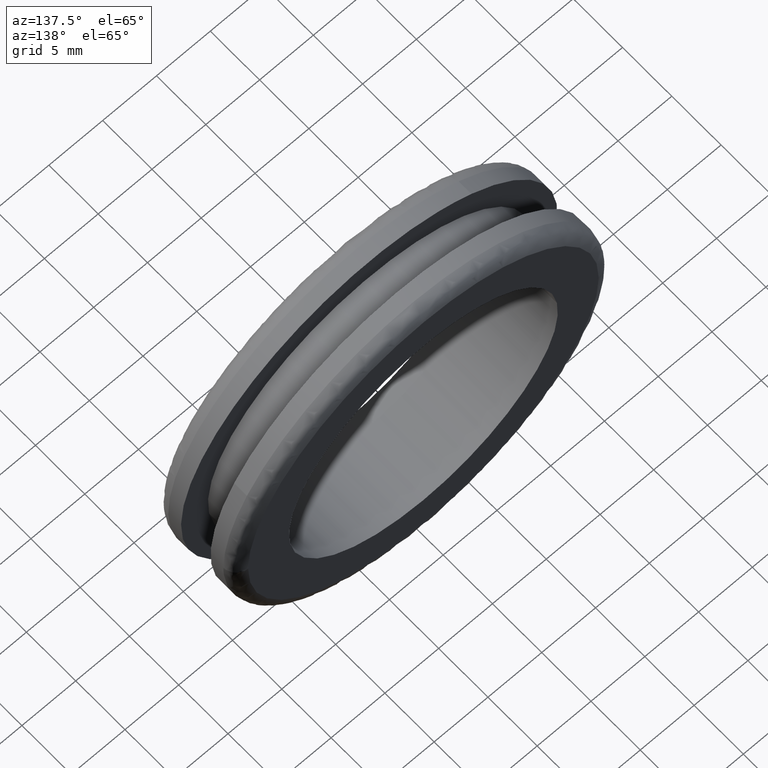
[diagram: clean part render]
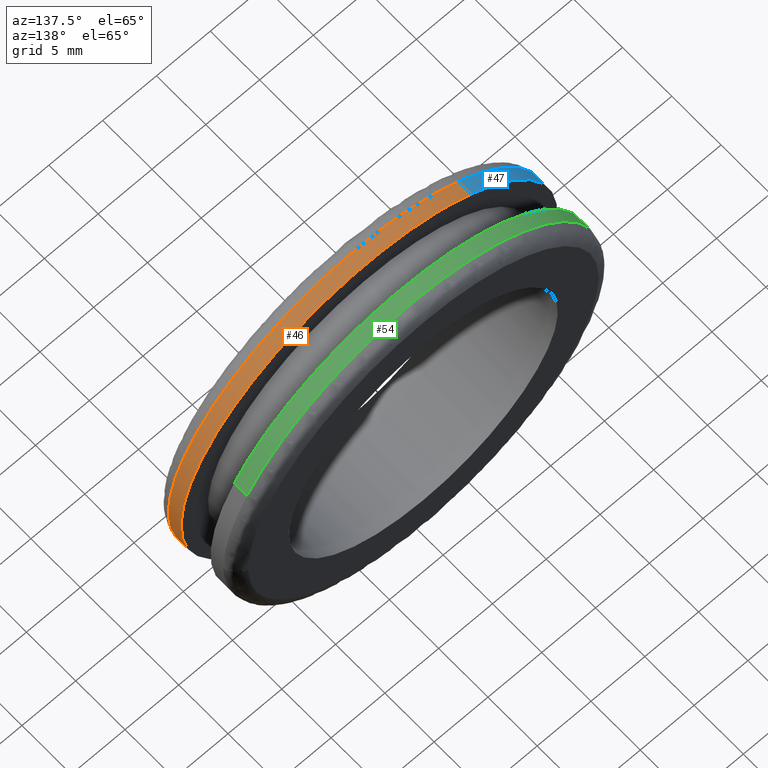
[diagram: same view with three faces highlighted in distinct colors, each labeled with its STEP entity id]
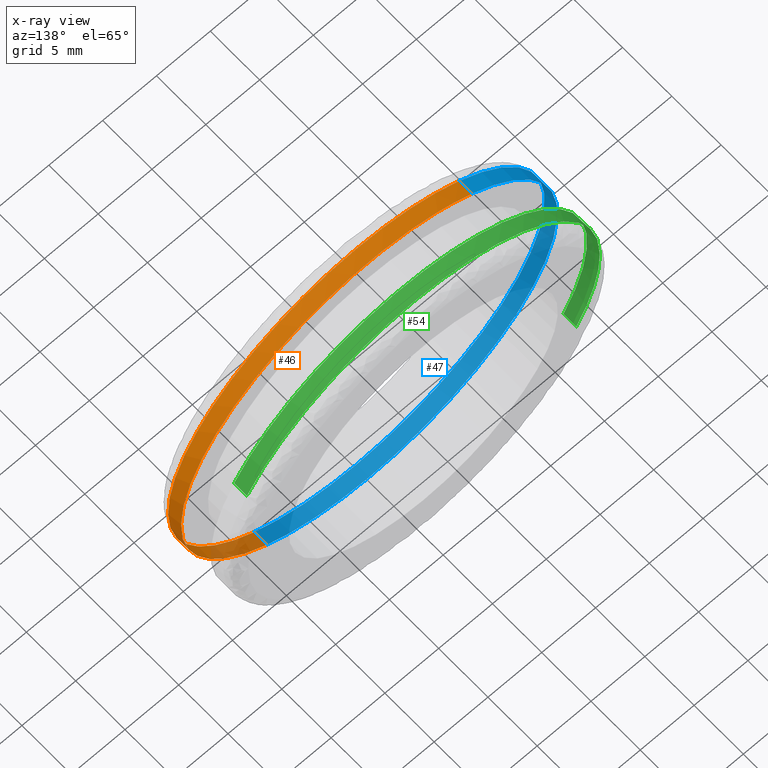
[diagram: x-ray of the same camera — body ghosted, the three highlighted faces saturated]
A machine part, auxiliary view with three faces highlighted in distinct colors.
The next image is the same camera in x-ray (body ghosted, the three faces saturated) — at least one of them is partly hidden behind the body in this view.
Their STEP definitions:

[orange] entity #46 — the highlighted cylindrical surface (partial cylindrical patch) has radius 17.5 mm, axis along (-0, 1, -0).
#46=ADVANCED_FACE('',(#121),#120,.T.);
#120=CYLINDRICAL_SURFACE('',#257,1.75000000000E+001);
#121=FACE_OUTER_BOUND('',#258,.T.);
#254=CARTESIAN_POINT('',(-2.60738374030E-015,2.53250000000E+000,1.50569380069E-015));
#255=DIRECTION('',(-5.66604407316E-016,1.00000000000E+000,-3.96339964228E-016));
#256=DIRECTION('',(-5.42728861529E-001,2.53765262771E-017,8.39907960948E-001));
#257=AXIS2_PLACEMENT_3D('',#254,#255,#256);
#258=EDGE_LOOP('',(#421,#422,#423,#424,#425,#426));
#421=ORIENTED_EDGE('',*,*,#487,.T.);
#422=ORIENTED_EDGE('',*,*,#511,.F.);
#423=ORIENTED_EDGE('',*,*,#512,.F.);
#424=ORIENTED_EDGE('',*,*,#513,.F.);
#425=ORIENTED_EDGE('',*,*,#514,.F.);
#426=ORIENTED_EDGE('',*,*,#515,.T.);
#487=EDGE_CURVE('',#543,#535,#544,.T.);
#511=EDGE_CURVE('',#708,#535,#709,.T.);
#512=EDGE_CURVE('',#715,#708,#716,.T.);
#513=EDGE_CURVE('',#722,#715,#723,.T.);
#514=EDGE_CURVE('',#729,#722,#730,.T.);
#515=EDGE_CURVE('',#729,#543,#736,.T.);
#535=VERTEX_POINT('',#866);
#543=VERTEX_POINT('',#872);
#544=(BOUNDED_CURVE() B_SPLINE_CURVE(2,(#873,#874,#875,#876,#877),.UNSPECIFIED.,.F.,.F.) B_SPLINE_CURVE_WITH_KNOTS((3,2,3),(0.00000000000E+000,5.00000000000E-001,1.00000000000E+000),.UNSPECIFIED.) CURVE() GEOMETRIC_REPRESENTATION_ITEM() RATIONAL_B_SPLINE_CURVE((1.00000000000E+000,7.07160008278E-001,1.00000000000E+000,7.07160008278E-001,1.00000000000E+000)) REPRESENTATION_ITEM('') );
#708=VERTEX_POINT('',#985);
#709=(BOUNDED_CURVE() B_SPLINE_CURVE(1,(#986,#987),.UNSPECIFIED.,.F.,.F.) B_SPLINE_CURVE_WITH_KNOTS((2,2),(8.33333532020E-002,9.16666656883E-001),.UNSPECIFIED.) CURVE() GEOMETRIC_REPRESENTATION_ITEM() RATIONAL_B_SPLINE_CURVE((1.00000000000E+000,1.00000000000E+000)) REPRESENTATION_ITEM('') );
#715=VERTEX_POINT('',#988);
#716=CIRCLE('',#992,1.75000000000E+001);
#722=VERTEX_POINT('',#993);
#723=CIRCLE('',#997,1.75000000000E+001);
#729=VERTEX_POINT('',#998);
#730=CIRCLE('',#1002,1.75000000000E+001);
#736=(BOUNDED_CURVE() B_SPLINE_CURVE(1,(#1003,#1004),.UNSPECIFIED.,.F.,.F.) B_SPLINE_CURVE_WITH_KNOTS((2,2),(8.33333333476E-002,9.16666666667E-001),.UNSPECIFIED.) CURVE() GEOMETRIC_REPRESENTATION_ITEM() RATIONAL_B_SPLINE_CURVE((7.50000000000E-001,7.50000000000E-001)) REPRESENTATION_ITEM('') );
#866=CARTESIAN_POINT('',(-9.49775507428E+000,2.50000000000E+000,1.46983893182E+001));
#872=CARTESIAN_POINT('',(9.49775507676E+000,2.50000000000E+000,-1.46983893166E+001));
#873=CARTESIAN_POINT('',(9.49775507676E+000,2.50000000000E+000,-1.46983893166E+001));
#874=CARTESIAN_POINT('',(2.41954969414E+001,2.50000000000E+000,-5.19477881519E+000));
#875=CARTESIAN_POINT('',(1.46969592207E+001,2.50000000000E+000,9.49996787701E+000));
#876=CARTESIAN_POINT('',(5.19842150009E+000,2.50000000000E+000,2.41947145692E+001));
#877=CARTESIAN_POINT('',(-9.49775507428E+000,2.50000000000E+000,1.46983893182E+001));
#985=CARTESIAN_POINT('',(-9.49775507687E+000,1.19999999999E+000,1.46983893165E+001));
#986=CARTESIAN_POINT('',(-9.49775507676E+000,1.20000003095E+000,1.46983893166E+001));
#987=CARTESIAN_POINT('',(-9.49775507676E+000,2.49999998474E+000,1.46983893166E+001));
#988=CARTESIAN_POINT('',(0.00000000000E+000,1.20000000000E+000,1.75000000000E+001));
#989=CARTESIAN_POINT('',(3.12994075102E-012,1.19999999995E+000,-3.35731442647E-012));
#990=DIRECTION('',(-4.48597845338E-018,-1.00000000000E+000,2.85324779676E-012));
#991=DIRECTION('',(1.78853757201E-013,-2.85324779676E-012,-1.00000000000E+000));
#992=AXIS2_PLACEMENT_3D('',#989,#990,#991);
#993=CARTESIAN_POINT('',(1.74986182736E+001,1.19999999995E+000,-2.19905697968E-001));
#994=CARTESIAN_POINT('',(1.77635683940E-015,1.19999999992E+000,-3.55271367880E-015));
#995=DIRECTION('',(7.14515478784E-012,-1.00000000000E+000,4.23763596986E-010));
#996=DIRECTION('',(-9.99921044204E-001,-1.81956037539E-012,1.25660398839E-002));
#997=AXIS2_PLACEMENT_3D('',#994,#995,#996);
#998=CARTESIAN_POINT('',(9.49807078876E+000,1.19999999999E+000,-1.46981853061E+001));
#999=CARTESIAN_POINT('',(-1.23332455360E-011,1.19999999995E+000,7.92077514689E-012));
#1000=DIRECTION('',(2.04828194437E-014,-1.00000000000E+000,-2.69712309461E-012));
#1001=DIRECTION('',(-5.42728706712E-001,-2.27645204274E-012,8.39908060987E-001));
#1002=AXIS2_PLACEMENT_3D('',#999,#1000,#1001);
#1003=CARTESIAN_POINT('',(9.49775507676E+000,1.19999999998E+000,-1.46983893166E+001));
#1004=CARTESIAN_POINT('',(9.49775507676E+000,2.50000000000E+000,-1.46983893166E+001));

[blue] entity #47 — the highlighted cylindrical surface (partial cylindrical patch) has radius 17.5 mm, axis along (-0, 1, -0).
#47=ADVANCED_FACE('',(#131),#130,.T.);
#130=CYLINDRICAL_SURFACE('',#262,1.75000000000E+001);
#131=FACE_OUTER_BOUND('',#263,.T.);
#259=CARTESIAN_POINT('',(-2.60738374030E-015,2.53250000000E+000,1.50569380069E-015));
#260=DIRECTION('',(-5.66604407316E-016,1.00000000000E+000,-3.96339964228E-016));
#261=DIRECTION('',(-5.42728861529E-001,2.53765262771E-017,8.39907960948E-001));
#262=AXIS2_PLACEMENT_3D('',#259,#260,#261);
#263=EDGE_LOOP('',(#427,#428,#429,#430,#431,#432,#433,#434));
#427=ORIENTED_EDGE('',*,*,#516,.F.);
#428=ORIENTED_EDGE('',*,*,#517,.F.);
#429=ORIENTED_EDGE('',*,*,#518,.F.);
#430=ORIENTED_EDGE('',*,*,#519,.F.);
#431=ORIENTED_EDGE('',*,*,#511,.T.);
#432=ORIENTED_EDGE('',*,*,#486,.T.);
#433=ORIENTED_EDGE('',*,*,#488,.T.);
#434=ORIENTED_EDGE('',*,*,#515,.F.);
#486=EDGE_CURVE('',#535,#536,#537,.T.);
#488=EDGE_CURVE('',#536,#543,#550,.T.);
#511=EDGE_CURVE('',#708,#535,#709,.T.);
#515=EDGE_CURVE('',#729,#543,#736,.T.);
#516=EDGE_CURVE('',#742,#729,#743,.T.);
#517=EDGE_CURVE('',#749,#742,#750,.T.);
#518=EDGE_CURVE('',#756,#749,#757,.T.);
#519=EDGE_CURVE('',#708,#756,#763,.T.);
#535=VERTEX_POINT('',#866);
#536=VERTEX_POINT('',#867);
#537=CIRCLE('',#871,1.75000000000E+001);
#543=VERTEX_POINT('',#872);
#550=(BOUNDED_CURVE() B_SPLINE_CURVE(2,(#878,#879,#880),.UNSPECIFIED.,.F.,.F.) B_SPLINE_CURVE_WITH_KNOTS((3,3),(0.00000000000E+000,9.99467849730E-001),.UNSPECIFIED.) CURVE() GEOMETRIC_REPRESENTATION_ITEM() RATIONAL_B_SPLINE_CURVE((1.00000000000E+000,9.59099708657E-001,1.00000000000E+000)) REPRESENTATION_ITEM('') );
#708=VERTEX_POINT('',#985);
#709=(BOUNDED_CURVE() B_SPLINE_CURVE(1,(#986,#987),.UNSPECIFIED.,.F.,.F.) B_SPLINE_CURVE_WITH_KNOTS((2,2),(8.33333532020E-002,9.16666656883E-001),.UNSPECIFIED.) CURVE() GEOMETRIC_REPRESENTATION_ITEM() RATIONAL_B_SPLINE_CURVE((1.00000000000E+000,1.00000000000E+000)) REPRESENTATION_ITEM('') );
#729=VERTEX_POINT('',#998);
#736=(BOUNDED_CURVE() B_SPLINE_CURVE(1,(#1003,#1004),.UNSPECIFIED.,.F.,.F.) B_SPLINE_CURVE_WITH_KNOTS((2,2),(8.33333333476E-002,9.16666666667E-001),.UNSPECIFIED.) CURVE() GEOMETRIC_REPRESENTATION_ITEM() RATIONAL_B_SPLINE_CURVE((7.50000000000E-001,7.50000000000E-001)) REPRESENTATION_ITEM('') );
#742=VERTEX_POINT('',#1005);
#743=CIRCLE('',#1009,1.75000000000E+001);
#749=VERTEX_POINT('',#1010);
#750=CIRCLE('',#1014,1.75000000000E+001);
#756=VERTEX_POINT('',#1015);
#757=CIRCLE('',#1019,1.75000000000E+001);
#763=CIRCLE('',#1023,1.75000000000E+001);
#866=CARTESIAN_POINT('',(-9.49775507428E+000,2.50000000000E+000,1.46983893182E+001));
#867=CARTESIAN_POINT('',(0.00000000000E+000,2.50000000000E+000,-1.75000000000E+001));
#868=CARTESIAN_POINT('',(1.54543045028E-013,2.50000000000E+000,2.08499884025E-013));
#869=DIRECTION('',(9.36100004287E-017,-1.00000000000E+000,9.07020236042E-017));
#870=DIRECTION('',(-9.32587340685E-015,-9.07020236042E-017,-1.00000000000E+000));
#871=AXIS2_PLACEMENT_3D('',#868,#869,#870);
#872=CARTESIAN_POINT('',(9.49775507676E+000,2.50000000000E+000,-1.46983893166E+001));
#878=CARTESIAN_POINT('',(-8.65973959207E-015,2.50000000000E+000,-1.75000000000E+001));
#879=CARTESIAN_POINT('',(5.16494570445E+000,2.50000000000E+000,-1.75000000000E+001));
#880=CARTESIAN_POINT('',(9.49775507676E+000,2.50000000000E+000,-1.46983893166E+001));
#985=CARTESIAN_POINT('',(-9.49775507687E+000,1.19999999999E+000,1.46983893165E+001));
#986=CARTESIAN_POINT('',(-9.49775507676E+000,1.20000003095E+000,1.46983893166E+001));
#987=CARTESIAN_POINT('',(-9.49775507676E+000,2.49999998474E+000,1.46983893166E+001));
#998=CARTESIAN_POINT('',(9.49807078876E+000,1.19999999999E+000,-1.46981853061E+001));
#1003=CARTESIAN_POINT('',(9.49775507676E+000,1.19999999998E+000,-1.46983893166E+001));
#1004=CARTESIAN_POINT('',(9.49775507676E+000,2.50000000000E+000,-1.46983893166E+001));
#1005=CARTESIAN_POINT('',(-3.02387297383E-004,1.20000000000E+000,-1.74999999974E+001));
#1006=CARTESIAN_POINT('',(-1.23332455360E-011,1.19999999995E+000,7.92077514689E-012));
#1007=DIRECTION('',(2.04828194437E-014,-1.00000000000E+000,-2.69712309461E-012));
#1008=DIRECTION('',(-5.42728706712E-001,-2.27645204274E-012,8.39908060987E-001));
#1009=AXIS2_PLACEMENT_3D('',#1006,#1007,#1008);
#1010=CARTESIAN_POINT('',(-1.35034316115E+001,1.20000000000E+000,-1.11313671538E+001));
#1011=CARTESIAN_POINT('',(-1.23332455360E-011,1.19999999995E+000,7.92077514689E-012));
#1012=DIRECTION('',(2.04828194437E-014,-1.00000000000E+000,-2.69712309461E-012));
#1013=DIRECTION('',(-5.42728706712E-001,-2.27645204274E-012,8.39908060987E-001));
#1014=AXIS2_PLACEMENT_3D('',#1011,#1012,#1013);
#1015=CARTESIAN_POINT('',(-1.74573992922E+001,1.19999999995E+000,1.22033190258E+000));
#1016=CARTESIAN_POINT('',(-6.71462885293E-013,1.19999999966E+000,-2.22044604925E-014));
#1017=DIRECTION('',(-2.20912437763E-011,-1.00000000000E+000,-7.46754353608E-011));
#1018=DIRECTION('',(9.97565673840E-001,-1.68301055632E-011,-6.97332515758E-002));
#1019=AXIS2_PLACEMENT_3D('',#1016,#1017,#1018);
#1020=CARTESIAN_POINT('',(3.12994075102E-012,1.19999999995E+000,-3.35731442647E-012));
#1021=DIRECTION('',(-4.48597845338E-018,-1.00000000000E+000,2.85324779676E-012));
#1022=DIRECTION('',(1.78853757201E-013,-2.85324779676E-012,-1.00000000000E+000));
#1023=AXIS2_PLACEMENT_3D('',#1020,#1021,#1022);

[green] entity #54 — the highlighted cylindrical surface (partial cylindrical patch) has radius 17.5 mm, axis along (-0, 1, 0).
#54=ADVANCED_FACE('',(#201),#200,.T.);
#200=CYLINDRICAL_SURFACE('',#381,1.75000000000E+001);
#201=FACE_OUTER_BOUND('',#382,.T.);
#378=CARTESIAN_POINT('',(-9.04307677237E-016,6.83250000002E+000,1.24636421575E-014));
#379=DIRECTION('',(-2.36185531121E-017,1.00000000000E+000,4.26768412981E-017));
#380=DIRECTION('',(-8.74946427443E-001,-3.08148791102E-033,-4.84219732254E-001));
#381=AXIS2_PLACEMENT_3D('',#378,#379,#380);
#382=EDGE_LOOP('',(#472,#473,#474,#475,#476,#477));
#472=ORIENTED_EDGE('',*,*,#527,.T.);
#473=ORIENTED_EDGE('',*,*,#526,.T.);
#474=ORIENTED_EDGE('',*,*,#523,.T.);
#475=ORIENTED_EDGE('',*,*,#533,.F.);
#476=ORIENTED_EDGE('',*,*,#493,.F.);
#477=ORIENTED_EDGE('',*,*,#534,.T.);
#493=EDGE_CURVE('',#578,#585,#586,.T.);
#523=EDGE_CURVE('',#791,#784,#792,.T.);
#526=EDGE_CURVE('',#810,#791,#811,.T.);
#527=EDGE_CURVE('',#817,#810,#818,.T.);
#533=EDGE_CURVE('',#585,#784,#854,.T.);
#534=EDGE_CURVE('',#578,#817,#860,.T.);
#578=VERTEX_POINT('',#897);
#585=VERTEX_POINT('',#902);
#586=CIRCLE('',#906,1.75000011500E+001);
#784=VERTEX_POINT('',#1035);
#791=VERTEX_POINT('',#1040);
#792=CIRCLE('',#1044,1.75000000000E+001);
#810=VERTEX_POINT('',#1053);
#811=CIRCLE('',#1057,1.75000000000E+001);
#817=VERTEX_POINT('',#1058);
#818=CIRCLE('',#1062,1.75000000000E+001);
#854=(BOUNDED_CURVE() B_SPLINE_CURVE(1,(#1079,#1080),.UNSPECIFIED.,.F.,.F.) B_SPLINE_CURVE_WITH_KNOTS((2,2),(8.33333134656E-002,9.16666653270E-001),.UNSPECIFIED.) CURVE() GEOMETRIC_REPRESENTATION_ITEM() RATIONAL_B_SPLINE_CURVE((1.00000000000E+000,1.00000000000E+000)) REPRESENTATION_ITEM('') );
#860=(BOUNDED_CURVE() B_SPLINE_CURVE(1,(#1081,#1082),.UNSPECIFIED.,.F.,.F.) B_SPLINE_CURVE_WITH_KNOTS((2,2),(8.33333333334E-002,9.16666666469E-001),.UNSPECIFIED.) CURVE() GEOMETRIC_REPRESENTATION_ITEM() RATIONAL_B_SPLINE_CURVE((7.50000000000E-001,7.50000000000E-001)) REPRESENTATION_ITEM('') );
#897=CARTESIAN_POINT('',(1.53110666183E+001,5.50000000000E+000,8.47474326839E+000));
#902=CARTESIAN_POINT('',(-1.53115620581E+001,5.50000000000E+000,-8.47384879417E+000));
#903=CARTESIAN_POINT('',(4.47224532962E-007,5.50000000000E+000,-1.15003596868E-006));
#904=DIRECTION('',(1.25607396695E-016,-1.00000000000E+000,-1.42108537492E-015));
#905=DIRECTION('',(-2.55556887697E-008,1.42108537171E-015,-1.00000000000E+000));
#906=AXIS2_PLACEMENT_3D('',#903,#904,#905);
#1035=CARTESIAN_POINT('',(-1.53115624801E+001,6.79999999856E+000,-8.47384531465E+000));
#1040=CARTESIAN_POINT('',(-1.75000000000E+001,6.79999999998E+000,3.14043261123E-013));
#1041=CARTESIAN_POINT('',(-5.32907051820E-015,6.80000000003E+000,-3.55271367880E-015));
#1042=DIRECTION('',(2.84038553385E-012,-1.00000000000E+000,1.68464392093E-010));
#1043=DIRECTION('',(9.99921044204E-001,7.23230998899E-013,-1.25660398839E-002));
#1044=AXIS2_PLACEMENT_3D('',#1041,#1042,#1043);
#1053=CARTESIAN_POINT('',(-1.74986182736E+001,6.80000000002E+000,2.19905697968E-001));
#1054=CARTESIAN_POINT('',(-5.32907051820E-015,6.80000000003E+000,-3.55271367880E-015));
#1055=DIRECTION('',(2.84038553385E-012,-1.00000000000E+000,1.68464392093E-010));
#1056=DIRECTION('',(9.99921044204E-001,7.23230998899E-013,-1.25660398839E-002));
#1057=AXIS2_PLACEMENT_3D('',#1054,#1055,#1056);
#1058=CARTESIAN_POINT('',(1.53115640998E+001,6.80000000000E+000,8.47384238813E+000));
#1059=CARTESIAN_POINT('',(4.79616346638E-014,6.80000000000E+000,7.08766378921E-013));
#1060=DIRECTION('',(-3.38296716314E-017,-1.00000000000E+000,-1.45080365579E-014));
#1061=DIRECTION('',(-8.74946519986E-001,7.05467430505E-015,-4.84219565036E-001));
#1062=AXIS2_PLACEMENT_3D('',#1059,#1060,#1061);
#1079=CARTESIAN_POINT('',(-1.53115624803E+001,5.49999996901E+000,-8.47384531445E+000));
#1080=CARTESIAN_POINT('',(-1.53115624803E+001,6.79999997912E+000,-8.47384531445E+000));
#1081=CARTESIAN_POINT('',(1.53115624803E+001,5.50000000000E+000,8.47384531445E+000));
#1082=CARTESIAN_POINT('',(1.53115624803E+001,6.79999999971E+000,8.47384531445E+000));